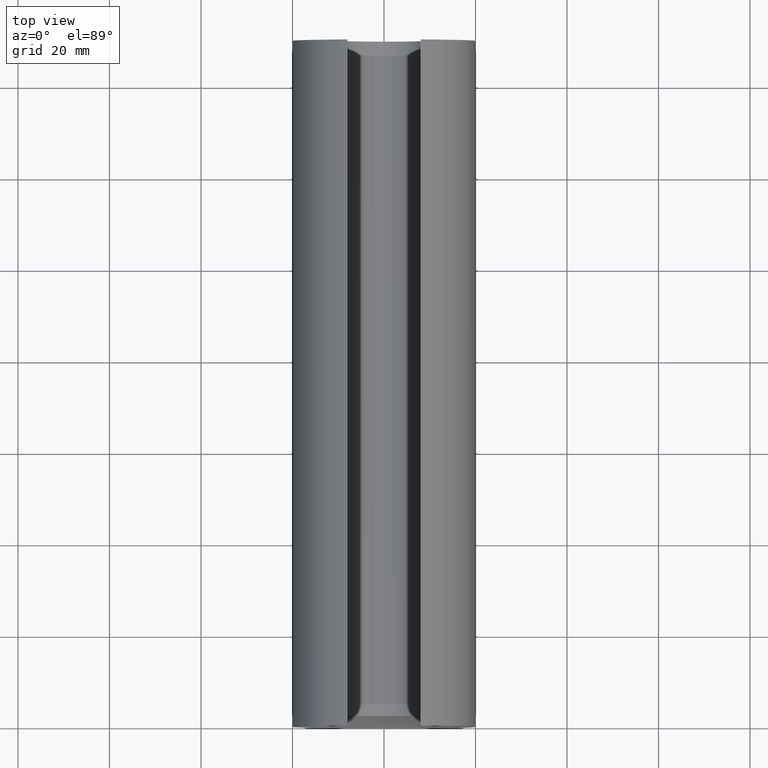
[diagram: clean part render]
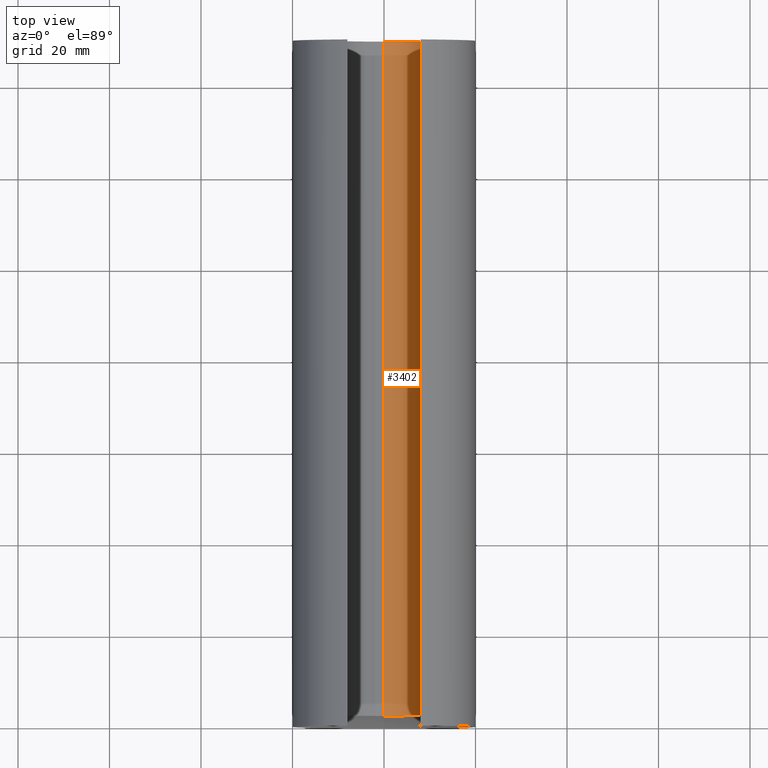
[diagram: same view with one face highlighted and labeled with its STEP entity id]
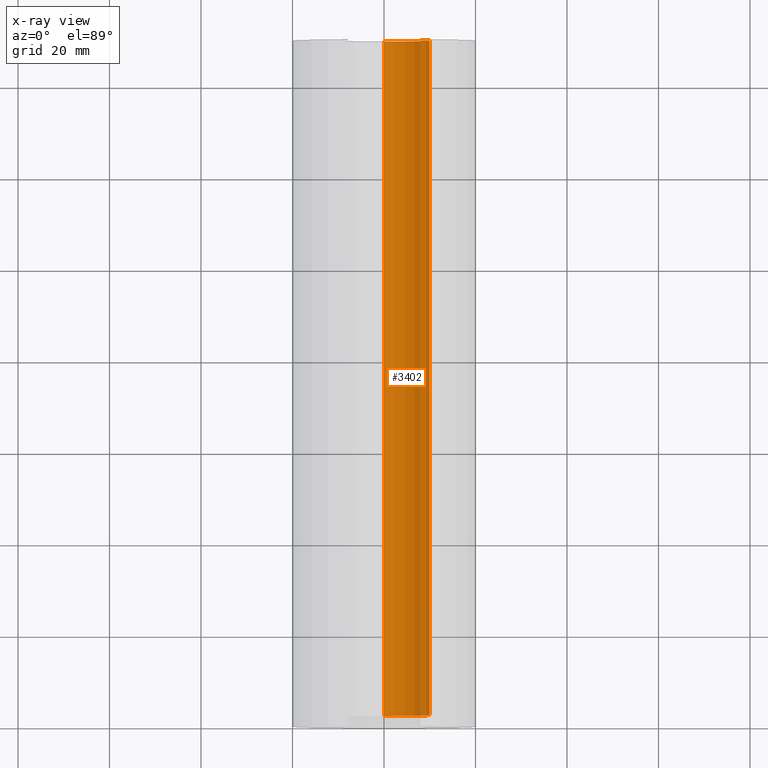
[diagram: x-ray of the same camera — body ghosted, the highlighted face saturated]
A machine part, top view. The second image highlights one B-rep face of the part: STEP entity #3402.
The next image is the same camera in x-ray: the body ghosted, the highlighted face saturated — about 0% of this face is hidden behind the body in this view.
In plain terms, the highlighted cylindrical surface (partial cylindrical patch) has radius 10 mm, axis along (-0, -1, -0).
Its self-contained STEP definition (entity closure, byte-faithful):
#171 = DIRECTION ( 'NONE',  ( -0.0000000000000000000, -1.000000000000000000, -0.0000000000000000000 ) ) ;
#1244 = CARTESIAN_POINT ( 'NONE',  ( 0.0000000000000000000, 150.0000000000000000, 0.0000000000000000000 ) ) ;
#1840 = CARTESIAN_POINT ( 'NONE',  ( 8.000000000000000000, 2.592255336072359000, 6.000000000000000900 ) ) ;
#1975 = ORIENTED_EDGE ( 'NONE', *, *, #6129, .F. ) ;
#2066 = DIRECTION ( 'NONE',  ( 0.0000000000000000000, 0.0000000000000000000, -1.000000000000000000 ) ) ;
#3257 = AXIS2_PLACEMENT_3D ( 'NONE', #1244, #9597, #11621 ) ;
#3368 = VERTEX_POINT ( 'NONE', #9335 ) ;
#3402 = ADVANCED_FACE ( 'NONE', ( #10151 ), #3532, .F. ) ;
#3532 = CYLINDRICAL_SURFACE ( 'NONE', #6195, 10.00000000000000000 ) ;
#3542 = CIRCLE ( 'NONE', #3257, 10.00000000000000000 ) ;
#4124 = CARTESIAN_POINT ( 'NONE',  ( 0.0000000000000000000, 150.0000000000000000, -10.00000000000000000 ) ) ;
#4130 = CIRCLE ( 'NONE', #6100, 10.00000000000000000 ) ;
#4275 = CARTESIAN_POINT ( 'NONE',  ( 0.0000000000000000000, 2.592255336072366100, -10.00000000000000000 ) ) ;
#4820 = EDGE_CURVE ( 'NONE', #5672, #7244, #10769, .T. ) ;
#5118 = CARTESIAN_POINT ( 'NONE',  ( 8.000000000000000000, 150.0000000000000000, 6.000000000000000900 ) ) ;
#5449 = VECTOR ( 'NONE', #7160, 1000.000000000000000 ) ;
#5672 = VERTEX_POINT ( 'NONE', #4124 ) ;
#6100 = AXIS2_PLACEMENT_3D ( 'NONE', #11349, #9311, #2066 ) ;
#6129 = EDGE_CURVE ( 'NONE', #3368, #10825, #11087, .T. ) ;
#6195 = AXIS2_PLACEMENT_3D ( 'NONE', #8169, #12315, #6239 ) ;
#6239 = DIRECTION ( 'NONE',  ( 0.0000000000000000000, 0.0000000000000000000, -1.000000000000000000 ) ) ;
#6834 = ORIENTED_EDGE ( 'NONE', *, *, #7566, .T. ) ;
#7160 = DIRECTION ( 'NONE',  ( -0.0000000000000000000, -1.000000000000000000, -0.0000000000000000000 ) ) ;
#7244 = VERTEX_POINT ( 'NONE', #4275 ) ;
#7566 = EDGE_CURVE ( 'NONE', #7244, #10825, #4130, .T. ) ;
#8169 = CARTESIAN_POINT ( 'NONE',  ( 0.0000000000000000000, 150.0000000000000000, 0.0000000000000000000 ) ) ;
#9189 = EDGE_LOOP ( 'NONE', ( #10543, #13156, #6834, #1975 ) ) ;
#9311 = DIRECTION ( 'NONE',  ( -0.0000000000000000000, -1.000000000000000000, -0.0000000000000000000 ) ) ;
#9335 = CARTESIAN_POINT ( 'NONE',  ( 8.000000000000000000, 150.0000000000000000, 6.000000000000000900 ) ) ;
#9597 = DIRECTION ( 'NONE',  ( -0.0000000000000000000, -1.000000000000000000, -0.0000000000000000000 ) ) ;
#10151 = FACE_OUTER_BOUND ( 'NONE', #9189, .T. ) ;
#10543 = ORIENTED_EDGE ( 'NONE', *, *, #11973, .F. ) ;
#10769 = LINE ( 'NONE', #11644, #12880 ) ;
#10825 = VERTEX_POINT ( 'NONE', #1840 ) ;
#11087 = LINE ( 'NONE', #5118, #5449 ) ;
#11349 = CARTESIAN_POINT ( 'NONE',  ( 0.0000000000000000000, 2.592255336072366100, 0.0000000000000000000 ) ) ;
#11621 = DIRECTION ( 'NONE',  ( 0.0000000000000000000, 0.0000000000000000000, 1.000000000000000000 ) ) ;
#11644 = CARTESIAN_POINT ( 'NONE',  ( 0.0000000000000000000, 150.0000000000000000, -10.00000000000000000 ) ) ;
#11973 = EDGE_CURVE ( 'NONE', #5672, #3368, #3542, .T. ) ;
#12315 = DIRECTION ( 'NONE',  ( -0.0000000000000000000, -1.000000000000000000, -0.0000000000000000000 ) ) ;
#12880 = VECTOR ( 'NONE', #171, 1000.000000000000000 ) ;
#13156 = ORIENTED_EDGE ( 'NONE', *, *, #4820, .T. ) ;